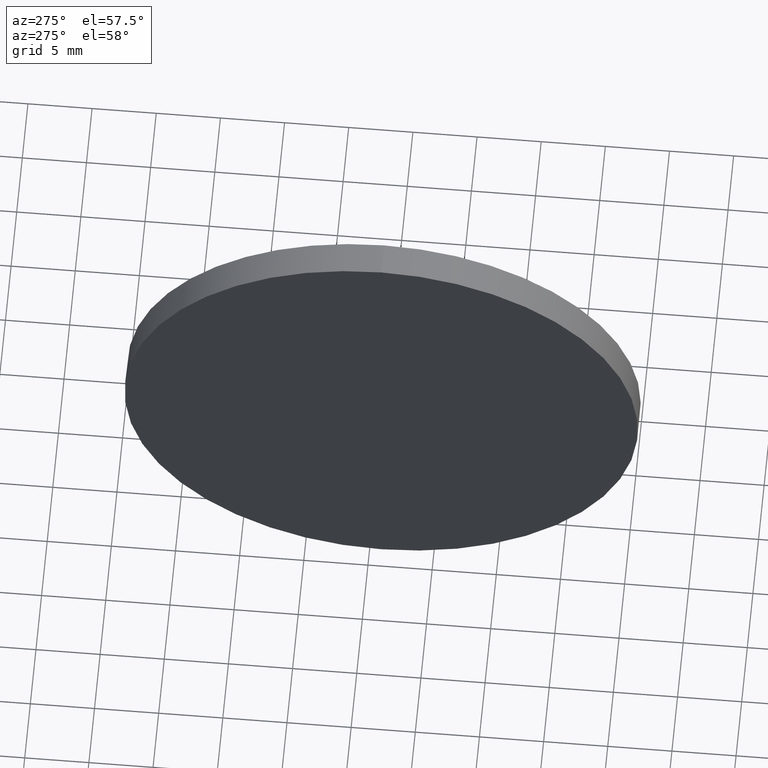
[diagram: clean part render]
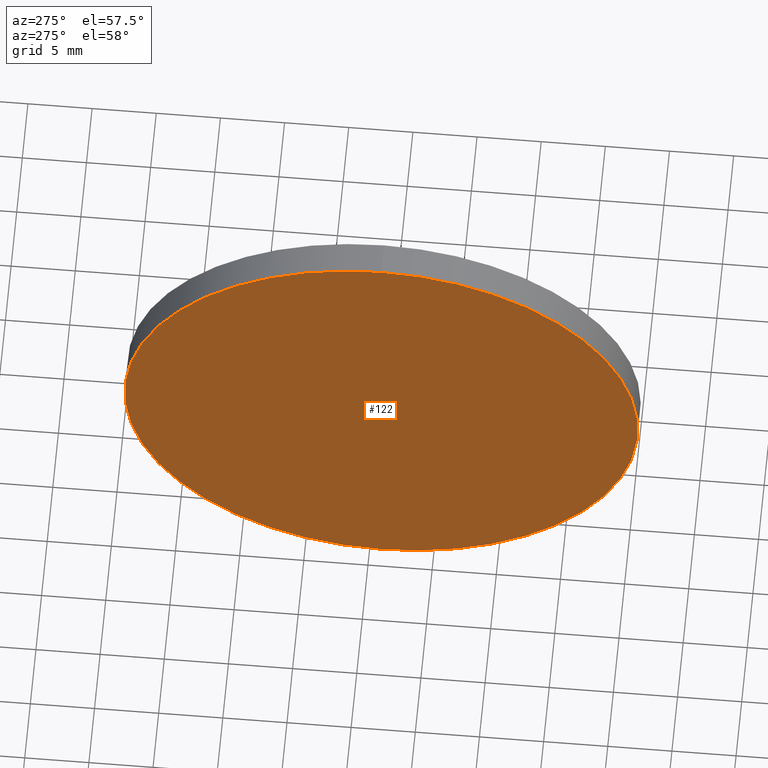
[diagram: same view with one face highlighted and labeled with its STEP entity id]
A machine part, auxiliary view. The second image highlights one B-rep face of the part: STEP entity #122.
In plain terms, the highlighted planar face has unit normal (1, 0, 0).
Its self-contained STEP definition (entity closure, byte-faithful):
#16 = VERTEX_POINT ( 'NONE', #139 ) ;
#18 = VERTEX_POINT ( 'NONE', #108 ) ;
#21 = AXIS2_PLACEMENT_3D ( 'NONE', #111, #180, #166 ) ;
#22 = DIRECTION ( 'NONE',  ( 0.0000000000000000000, 0.0000000000000000000, 1.000000000000000000 ) ) ;
#29 = CIRCLE ( 'NONE', #127, 19.99999999999999600 ) ;
#49 = DIRECTION ( 'NONE',  ( 0.0000000000000000000, 0.0000000000000000000, -1.000000000000000000 ) ) ;
#50 = ORIENTED_EDGE ( 'NONE', *, *, #67, .T. ) ;
#54 = ORIENTED_EDGE ( 'NONE', *, *, #57, .T. ) ;
#57 = EDGE_CURVE ( 'NONE', #18, #16, #75, .T. ) ;
#65 = AXIS2_PLACEMENT_3D ( 'NONE', #113, #158, #49 ) ;
#66 = FACE_OUTER_BOUND ( 'NONE', #165, .T. ) ;
#67 = EDGE_CURVE ( 'NONE', #16, #18, #29, .T. ) ;
#75 = CIRCLE ( 'NONE', #21, 19.99999999999999600 ) ;
#94 = CARTESIAN_POINT ( 'NONE',  ( 530.9993253388914800, 14.05586317027587000, 0.0000000000000000000 ) ) ;
#108 = CARTESIAN_POINT ( 'NONE',  ( 530.9993253388914800, 14.05586317027587000, 19.99999999999999600 ) ) ;
#111 = CARTESIAN_POINT ( 'NONE',  ( 530.9993253388914800, 14.05586317027587000, 0.0000000000000000000 ) ) ;
#113 = CARTESIAN_POINT ( 'NONE',  ( 530.9993253388914800, 14.05586317027587000, 0.0000000000000000000 ) ) ;
#122 = ADVANCED_FACE ( 'NONE', ( #66 ), #171, .F. ) ;
#127 = AXIS2_PLACEMENT_3D ( 'NONE', #94, #131, #22 ) ;
#131 = DIRECTION ( 'NONE',  ( -1.000000000000000000, -0.0000000000000000000, -0.0000000000000000000 ) ) ;
#139 = CARTESIAN_POINT ( 'NONE',  ( 530.9993253388914800, 14.05586317027587200, -19.99999999999999600 ) ) ;
#158 = DIRECTION ( 'NONE',  ( 1.000000000000000000, 0.0000000000000000000, 0.0000000000000000000 ) ) ;
#165 = EDGE_LOOP ( 'NONE', ( #54, #50 ) ) ;
#166 = DIRECTION ( 'NONE',  ( 0.0000000000000000000, 0.0000000000000000000, 1.000000000000000000 ) ) ;
#171 = PLANE ( 'NONE',  #65 ) ;
#180 = DIRECTION ( 'NONE',  ( -1.000000000000000000, -0.0000000000000000000, -0.0000000000000000000 ) ) ;